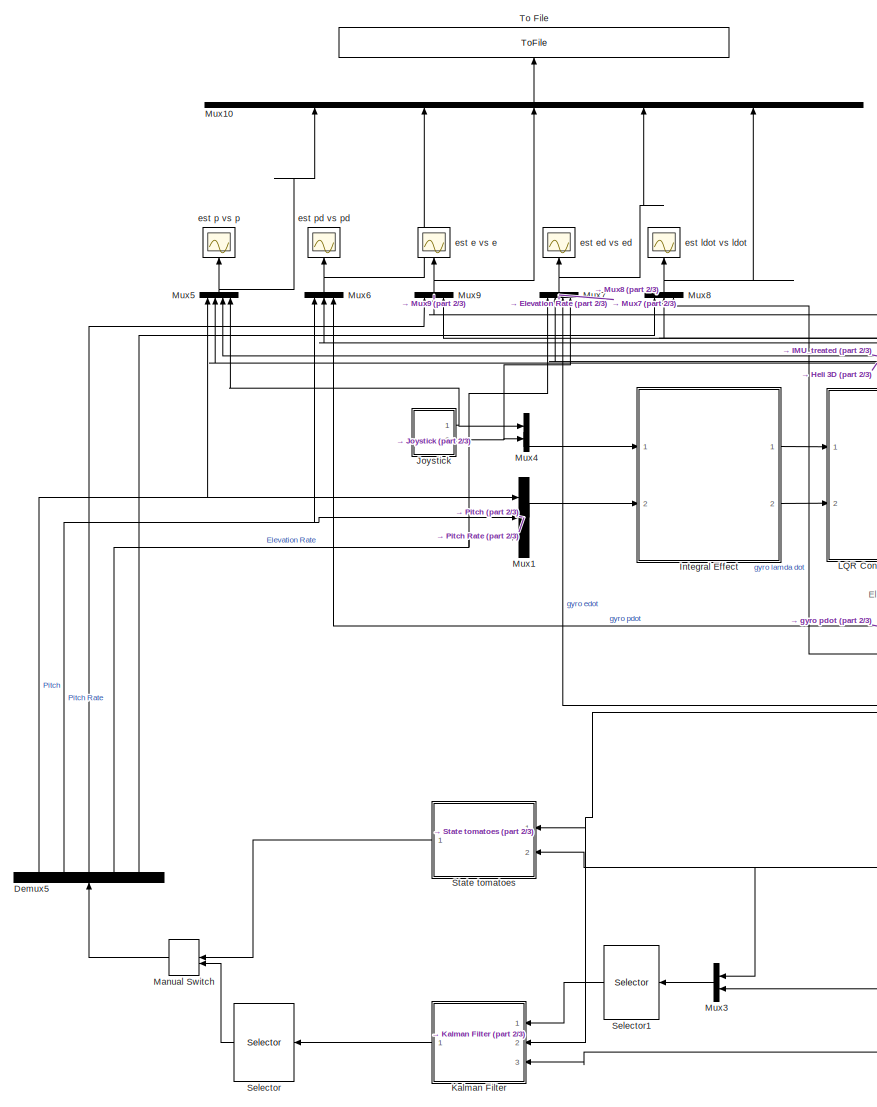
[diagram: root canvas - part 1/3, left side, full height]
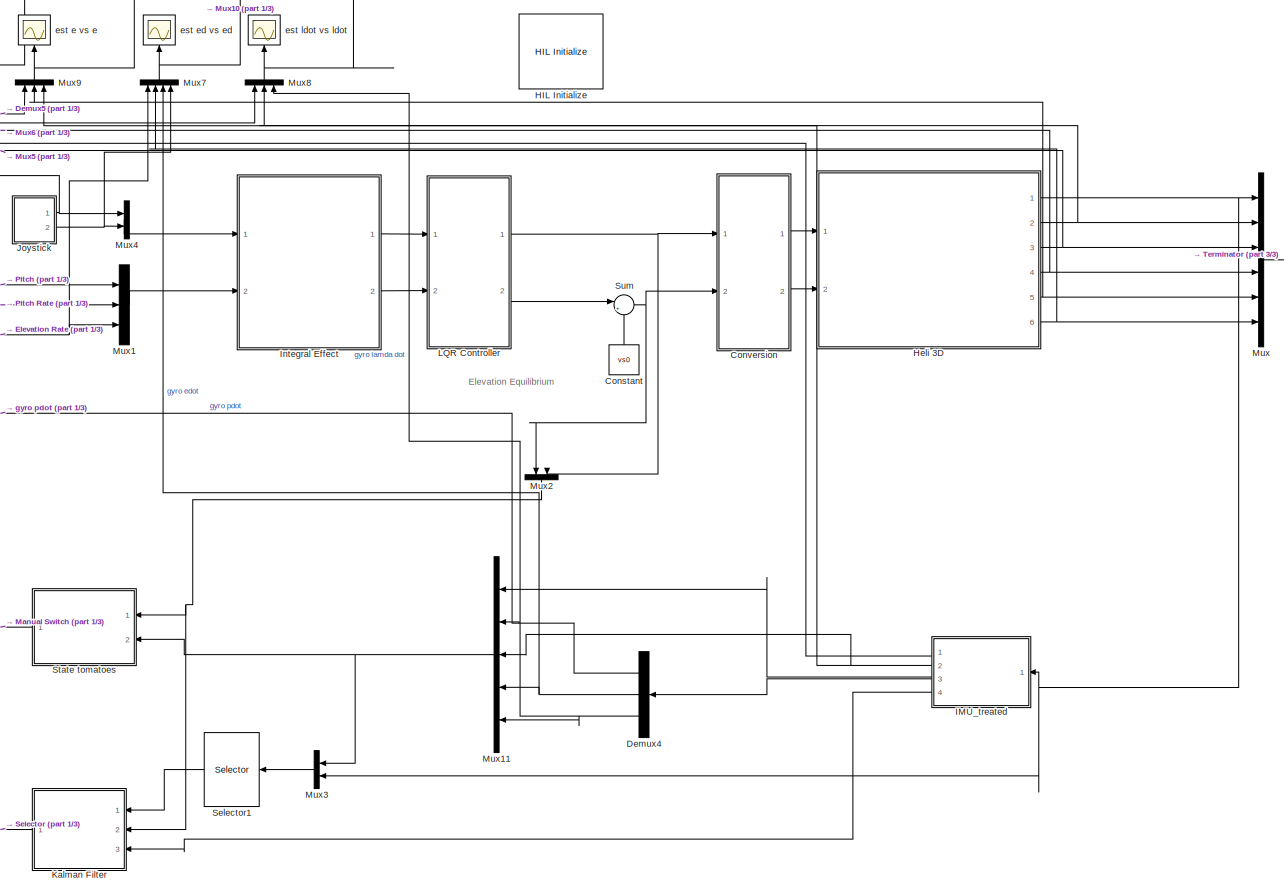
[diagram: root canvas - part 2/3, center side, full height]
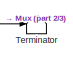
[diagram: root canvas - part 3/3, middle right region]
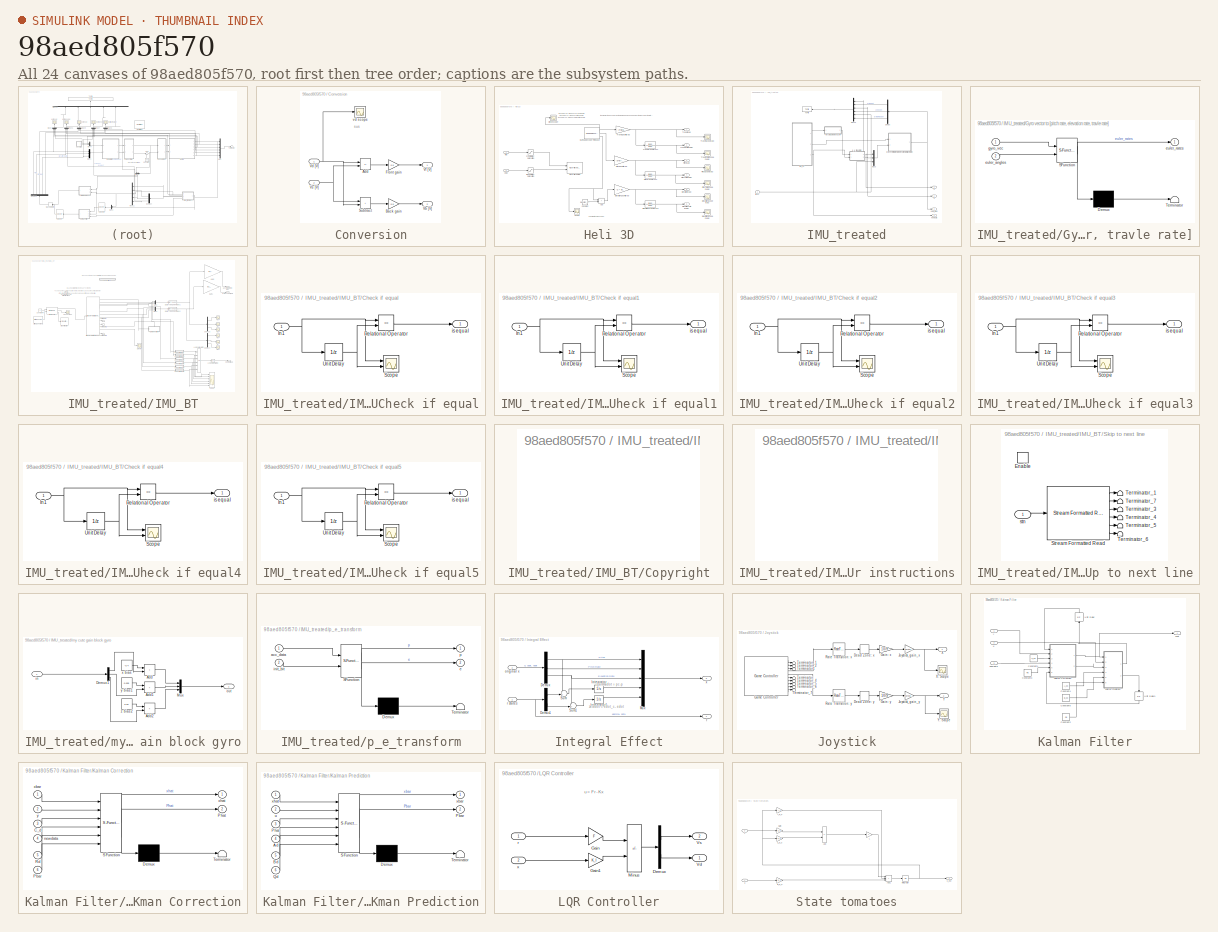
[diagram: thumbnail index - all 24 canvases of the model, root first then tree order]
MODEL slx_98aed805f570
KIND model
CONFIG AbsTol = auto
CONFIG EnableMultiTasking = on
CONFIG FixedStep = 0.002
CONFIG MaxStep = auto
CONFIG MinStep = auto
CONFIG PostLoadFcn = qc_set_target_type(getConfigSet(bdroot, 'QUARC Default Target Configuration'));
CONFIG RelTol = 1e-3
CONFIG SampleTimeConstraint = Unconstrained
CONFIG SolverName = ode1
CONFIG StartTime = 0.0
CONFIG StopTime = inf
BLOCK [Constant] Constant
  NameLocation = right
  Value = vs0
BLOCK [SubSystem] Conversion
  Ports = [2, 2]
  RequestExecContextInheritance = off
BLOCK [Sum] Conversion/Add
  IconShape = rectangular
  Inputs = -+
  Ports = [2, 1]
BLOCK [Gain] Conversion/Back gain
  Gain = 0.5
BLOCK [Gain] Conversion/Front gain
  Gain = 0.5
BLOCK [Sum] Conversion/Subtract
  IconShape = rectangular
  Ports = [2, 1]
BLOCK [Outport] Conversion/Vb [V]
  Port = 2
BLOCK [Inport] Conversion/Vd [V]
BLOCK [Outport] Conversion/Vf [V]
BLOCK [Inport] Conversion/Vs [V]
  Port = 2
BLOCK [Scope] Conversion/vd scope
  Commented = on
  Floating = off
  NumInputPorts = 1
  Ports = [1]
  ScopeSpecificationString = Simulink.scopes.TimeScopeBlockCfg('CurrentConfiguration', extmgr.ConfigurationSet(extmgr.Configuration('Core','General UI',true),extmgr.Configuration('Core','Source UI',true),extmgr.Configuration('Sources','WiredSimulink',true,'DataLoggingVariableName','ScopeData1'),extmgr.Configuration('Visuals','Time Domain',true,'SerializedDisplays',{struct('MinYLimReal','-0.83924','MaxYLimReal','0.42691','YLab...<+1395ch>
BLOCK [Demux] Demux4
  NameLocation = top
  Outputs = 3
  Ports = [1, 3]
BLOCK [Demux] Demux5
  NameLocation = right
  Outputs = 5
  Ports = [1, 5]
BLOCK [Reference] HIL Initialize  REF=quarc_library/Data Acquisition/Generic/Configuration/HIL Initialize
  AttributesFormatString = %<object_name> (%<board_type>-%<board_number>)
  Ports = []
  Priority = -99
  SourceBlock = quarc_library/Data Acquisition/Generic/Configuration/HIL Initialize
  SourceProductName = QUARC Targets
  SourceType = HIL Initialize
  UserDataPersistent = on
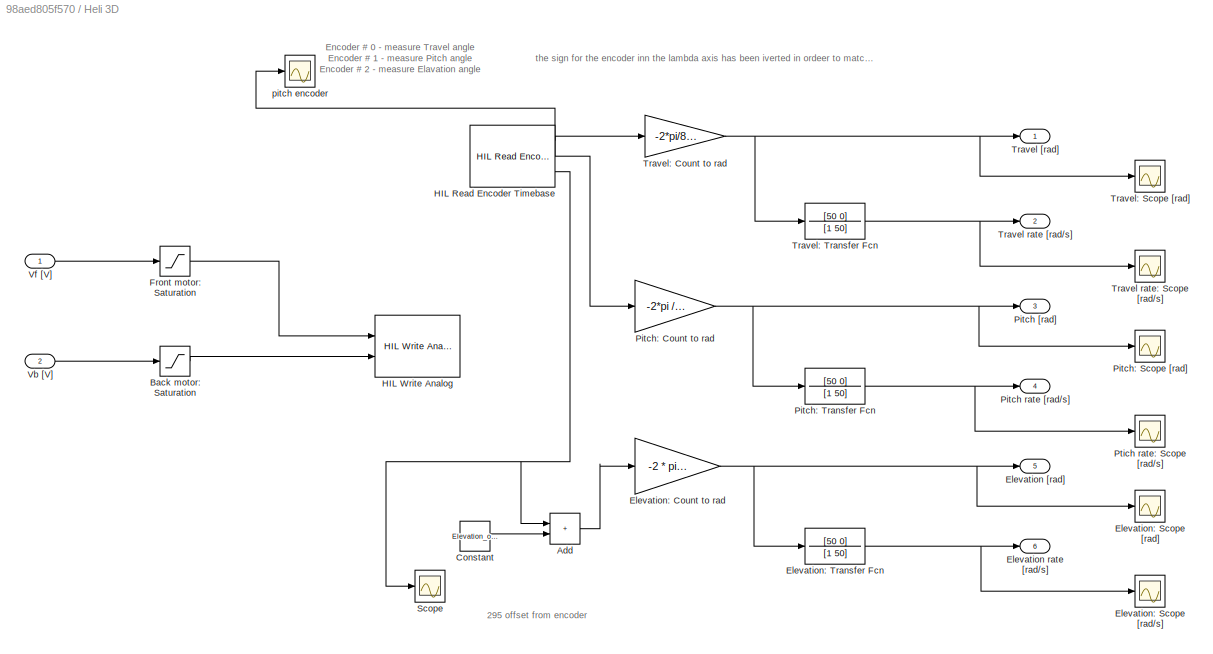
BLOCK [SubSystem] Heli 3D
  Ports = [2, 6]
  RequestExecContextInheritance = off
BLOCK [Sum] Heli 3D/Add
  IconShape = rectangular
  Ports = [2, 1]
BLOCK [Saturate] Heli 3D/Back motor: Saturation
  LowerLimit = -5
  UpperLimit = 5
BLOCK [Constant] Heli 3D/Constant
  Value = Elevation_offset
BLOCK [Outport] Heli 3D/Elevation [rad]
  Port = 5
BLOCK [Outport] Heli 3D/Elevation rate [rad//s]
  Port = 6
BLOCK [Gain] Heli 3D/Elevation: Count to rad
  Gain = -2 * pi /4096
BLOCK [Scope] Heli 3D/Elevation: Scope [rad//s]
  Floating = off
  NumInputPorts = 1
  Ports = [1]
  ScopeSpecificationString = Simulink.scopes.TimeScopeBlockCfg('CurrentConfiguration', extmgr.ConfigurationSet(extmgr.Configuration('Core','General UI',true),extmgr.Configuration('Core','Source UI',true),extmgr.Configuration('Sources','WiredSimulink',true,'DataLoggingVariableName','ScopeData13','DataLoggingSaveFormat','StructureWithTime','DataLoggingLimitDataPoints',true,'DataLoggingDecimation','1','DataLoggingDecimateData',t...<+1717ch>
BLOCK [Scope] Heli 3D/Elevation: Scope [rad]
  Floating = off
  NumInputPorts = 1
  Ports = [1]
  ScopeSpecificationString = Simulink.scopes.TimeScopeBlockCfg('CurrentConfiguration', extmgr.ConfigurationSet(extmgr.Configuration('Core','General UI',true),extmgr.Configuration('Core','Source UI',true),extmgr.Configuration('Sources','WiredSimulink',true,'DataLoggingVariableName','ScopeData12','DataLoggingSaveFormat','StructureWithTime','DataLoggingLimitDataPoints',true,'DataLoggingDecimation','1','DataLoggingDecimateData',t...<+1717ch>
BLOCK [TransferFcn] Heli 3D/Elevation: Transfer Fcn
  Denominator = [1 50]
  Numerator = [50 0]
BLOCK [Saturate] Heli 3D/Front motor: Saturation
  LowerLimit = -5
  UpperLimit = 5
BLOCK [Reference] Heli 3D/HIL Read Encoder Timebase  REF=quarc_library/Data Acquisition/Generic/Timebases/HIL Read Encoder
Timebase
  AttributesFormatString = (%<object_name>)
  Ports = [0, 3]
  SourceBlock = quarc_library/Data Acquisition/Generic/Timebases/HIL Read Encoder\nTimebase
  SourceProductName = QUARC Targets
  SourceType = HIL Read Encoder Timebase
  UserDataPersistent = on
BLOCK [Reference] Heli 3D/HIL Write Analog  REF=quarc_library/Data Acquisition/Generic/Immediate I//O/HIL Write Analog
  AttributesFormatString = (%<object_name>)
  Ports = [2]
  SourceBlock = quarc_library/Data Acquisition/Generic/Immediate I//O/HIL Write Analog
  SourceProductName = QUARC Targets
  SourceType = HIL Write Analog
  UserDataPersistent = on
BLOCK [Outport] Heli 3D/Pitch [rad]
  Port = 3
BLOCK [Outport] Heli 3D/Pitch rate [rad//s]
  Port = 4
BLOCK [Gain] Heli 3D/Pitch: Count to rad
  Gain = -2*pi /4096
  NameLocation = top
BLOCK [Scope] Heli 3D/Pitch: Scope [rad]
  Floating = off
  NumInputPorts = 1
  Ports = [1]
  ScopeSpecificationString = Simulink.scopes.TimeScopeBlockCfg('CurrentConfiguration', extmgr.ConfigurationSet(extmgr.Configuration('Core','General UI',true),extmgr.Configuration('Core','Source UI',true),extmgr.Configuration('Sources','WiredSimulink',true,'DataLoggingVariableName','ScopeData10','DataLoggingSaveFormat','StructureWithTime','DataLoggingLimitDataPoints',true,'DataLoggingDecimation','1','DataLoggingDecimateData',t...<+1716ch>
BLOCK [TransferFcn] Heli 3D/Pitch: Transfer Fcn
  Denominator = [1 50]
  Numerator = [50 0]
BLOCK [Scope] Heli 3D/Ptich rate: Scope [rad//s]
  Floating = off
  NumInputPorts = 1
  Ports = [1]
  ScopeSpecificationString = Simulink.scopes.TimeScopeBlockCfg('CurrentConfiguration', extmgr.ConfigurationSet(extmgr.Configuration('Core','General UI',true),extmgr.Configuration('Core','Source UI',true),extmgr.Configuration('Sources','WiredSimulink',true,'DataLoggingVariableName','ScopeData11','DataLoggingSaveFormat','StructureWithTime','DataLoggingLimitDataPoints',true,'DataLoggingDecimation','1','DataLoggingDecimateData',t...<+1711ch>
BLOCK [Scope] Heli 3D/Scope
  Floating = off
  NumInputPorts = 1
  Ports = [1]
  ScopeSpecificationString = Simulink.scopes.TimeScopeBlockCfg('CurrentConfiguration', extmgr.ConfigurationSet(extmgr.Configuration('Core','General UI',true),extmgr.Configuration('Core','Source UI',true),extmgr.Configuration('Sources','WiredSimulink',true,'DataLoggingVariableName','ScopeData3'),extmgr.Configuration('Visuals','Time Domain',true,'SerializedDisplays',{struct('MinYLimReal','-298.5','MaxYLimReal','-293.5','YLabelR...<+1425ch>
BLOCK [Outport] Heli 3D/Travel [rad]
BLOCK [Outport] Heli 3D/Travel rate [rad//s]
  Port = 2
BLOCK [Scope] Heli 3D/Travel rate: Scope [rad//s]
  Floating = off
  NumInputPorts = 1
  Ports = [1]
  ScopeSpecificationString = Simulink.scopes.TimeScopeBlockCfg('CurrentConfiguration', extmgr.ConfigurationSet(extmgr.Configuration('Core','General UI',true),extmgr.Configuration('Core','Source UI',true),extmgr.Configuration('Sources','WiredSimulink',true,'DataLoggingVariableName','ScopeData9','DataLoggingSaveFormat','StructureWithTime','DataLoggingLimitDataPoints',true,'DataLoggingDecimation','1','DataLoggingDecimateData',tr...<+1672ch>
BLOCK [Gain] Heli 3D/Travel: Count to rad
  Gain = -2*pi/8192
  NameLocation = top
BLOCK [Scope] Heli 3D/Travel: Scope [rad]
  Floating = off
  NumInputPorts = 1
  Ports = [1]
  ScopeSpecificationString = Simulink.scopes.TimeScopeBlockCfg('CurrentConfiguration', extmgr.ConfigurationSet(extmgr.Configuration('Core','General UI',true),extmgr.Configuration('Core','Source UI',true),extmgr.Configuration('Sources','WiredSimulink',true,'DataLoggingVariableName','ScopeData8','DataLoggingSaveFormat','StructureWithTime','DataLoggingLimitDataPoints',true,'DataLoggingDecimation','1','DataLoggingDecimateData',tr...<+1715ch>
BLOCK [TransferFcn] Heli 3D/Travel: Transfer Fcn
  Denominator = [1 50]
  Numerator = [50 0]
BLOCK [Inport] Heli 3D/Vb [V]
  Port = 2
BLOCK [Inport] Heli 3D/Vf [V]
BLOCK [Scope] Heli 3D/pitch encoder
  Floating = off
  NumInputPorts = 1
  Ports = [1]
  ScopeSpecificationString = Simulink.scopes.TimeScopeBlockCfg('CurrentConfiguration', extmgr.ConfigurationSet(extmgr.Configuration('Core','General UI',true),extmgr.Configuration('Core','Source UI',true),extmgr.Configuration('Sources','WiredSimulink',true,'DataLoggingVariableName','ScopeData2'),extmgr.Configuration('Visuals','Time Domain',true),extmgr.Configuration('Tools','Plot Navigation',true),extmgr.Configuration('Tools',...<+40ch>
BLOCK [SubSystem] IMU_treated
  NameLocation = top
  Ports = [1, 4]
  RequestExecContextInheritance = off
BLOCK [Demux] IMU_treated/Demux
  NameLocation = top
  Outputs = 3
  Ports = [1, 3]
BLOCK [SubSystem] IMU_treated/Gyro vector to [pitch rate, elevation rate, travle rate]
  ErrorFcn = Stateflow.Translate.translate
  PermitHierarchicalResolution = ExplicitOnly
  Ports = [2, 1]
  RequestExecContextInheritance = off
  SFBlockType = MATLAB Function
  TreatAsAtomicUnit = on
BLOCK [Demux] IMU_treated/Gyro vector to [pitch rate, elevation rate, travle rate]/ Demux 
  Outputs = 1
  Ports = [1, 1]
BLOCK [S-Function] IMU_treated/Gyro vector to [pitch rate, elevation rate, travle rate]/ SFunction 
  EnableBusSupport = on
  FunctionName = sf_sfun
  PortCounts = [2 2]
  Ports = [2, 2]
  SFcnIsStateOwnerBlock = off
  SFunctionDeploymentMode = off
  Tag = Stateflow S-Function 5
BLOCK [Terminator] IMU_treated/Gyro vector to [pitch rate, elevation rate, travle rate]/ Terminator 
BLOCK [Inport] IMU_treated/Gyro vector to [pitch rate, elevation rate, travle rate]/euler_angles
  Port = 2
BLOCK [Outport] IMU_treated/Gyro vector to [pitch rate, elevation rate, travle rate]/euler_rates
BLOCK [Inport] IMU_treated/Gyro vector to [pitch rate, elevation rate, travle rate]/gyro_vec
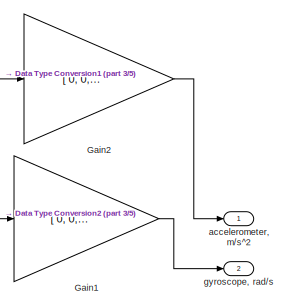
[diagram: IMU_treated/IMU_BT - part 1/5, top right region]
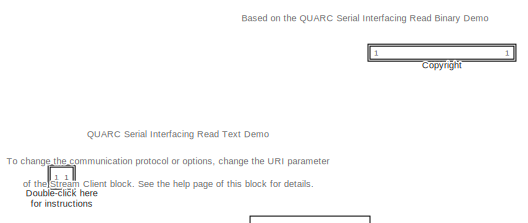
[diagram: IMU_treated/IMU_BT - part 2/5, top left region]
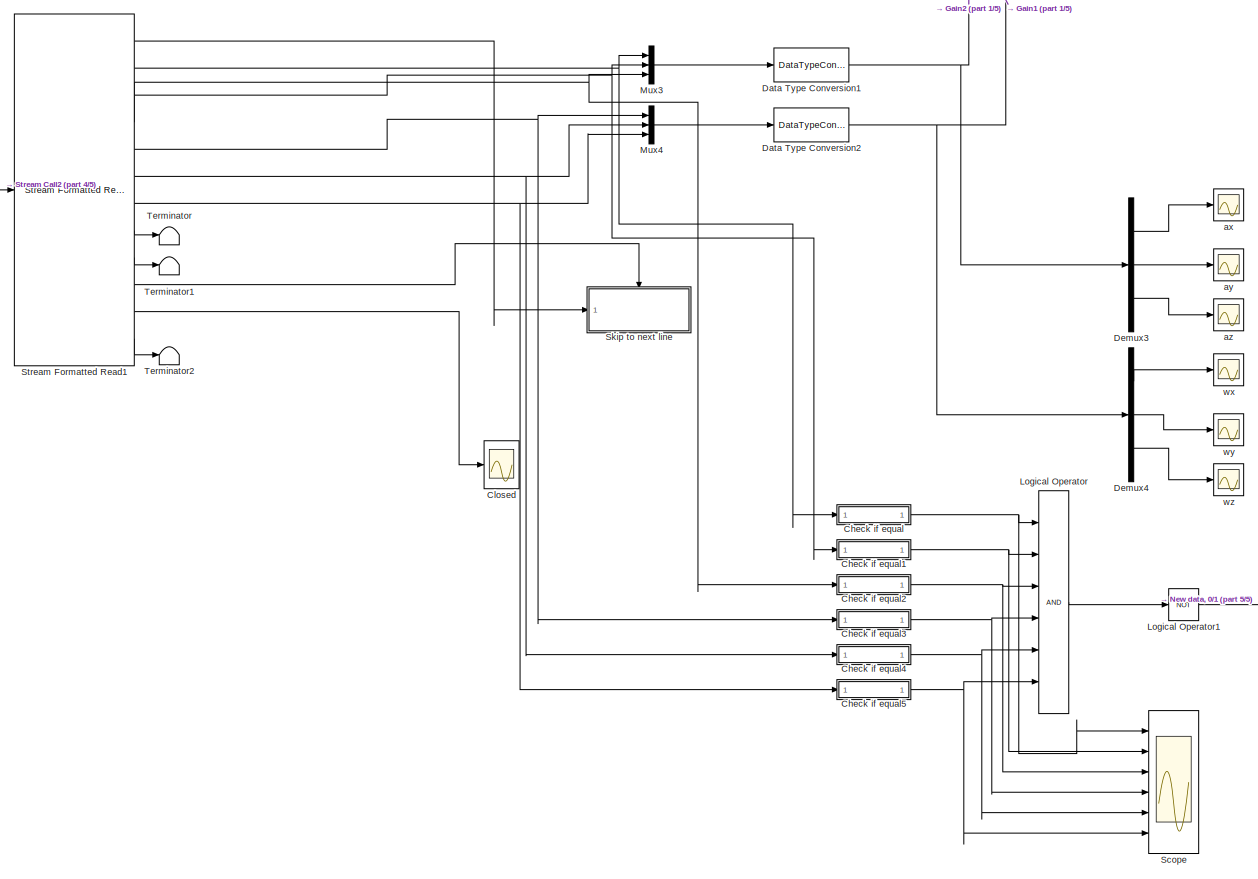
[diagram: IMU_treated/IMU_BT - part 3/5, center side, full height]
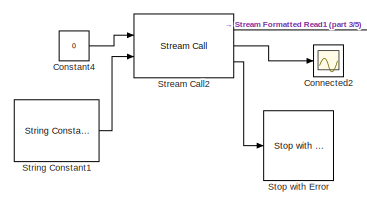
[diagram: IMU_treated/IMU_BT - part 4/5, middle left region]
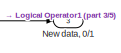
[diagram: IMU_treated/IMU_BT - part 5/5, bottom right region]
BLOCK [SubSystem] IMU_treated/IMU_BT
  Ports = [0, 3]
  RequestExecContextInheritance = off
BLOCK [SubSystem] IMU_treated/IMU_BT/Check if equal
  Ports = [1, 1]
  RequestExecContextInheritance = off
BLOCK [Inport] IMU_treated/IMU_BT/Check if equal/In1
BLOCK [RelationalOperator] IMU_treated/IMU_BT/Check if equal/Relational Operator
  InputSameDT = off
  Operator = ==
  OutDataTypeStr = boolean
  Ports = [2, 1]
BLOCK [Scope] IMU_treated/IMU_BT/Check if equal/Scope
  Floating = off
  NumInputPorts = 2
  Ports = [2]
  ScopeSpecificationString = Simulink.scopes.TimeScopeBlockCfg('CurrentConfiguration', extmgr.ConfigurationSet(extmgr.Configuration('Core','General UI',true),extmgr.Configuration('Core','Source UI',true),extmgr.Configuration('Sources','WiredSimulink',true,'DataLoggingVariableName','ScopeData9'),extmgr.Configuration('Visuals','Time Domain',true,'SerializedDisplays',{struct('MinYLimReal','-1.05125','MaxYLimReal','9.46125','YLab...<+1430ch>
BLOCK [UnitDelay] IMU_treated/IMU_BT/Check if equal/Unit Delay
  HasFrameUpgradeWarning = on
  InitialCondition = NaN
  SampleTime = -1
BLOCK [Outport] IMU_treated/IMU_BT/Check if equal/is equal
BLOCK [SubSystem] IMU_treated/IMU_BT/Check if equal1
  Ports = [1, 1]
  RequestExecContextInheritance = off
BLOCK [Inport] IMU_treated/IMU_BT/Check if equal1/In1
BLOCK [RelationalOperator] IMU_treated/IMU_BT/Check if equal1/Relational Operator
  InputSameDT = off
  Operator = ==
  OutDataTypeStr = boolean
  Ports = [2, 1]
BLOCK [Scope] IMU_treated/IMU_BT/Check if equal1/Scope
  Floating = off
  NumInputPorts = 2
  Ports = [2]
  ScopeSpecificationString = Simulink.scopes.TimeScopeBlockCfg('CurrentConfiguration', extmgr.ConfigurationSet(extmgr.Configuration('Core','General UI',true),extmgr.Configuration('Core','Source UI',true),extmgr.Configuration('Sources','WiredSimulink',true,'DataLoggingVariableName','ScopeData9'),extmgr.Configuration('Visuals','Time Domain',true,'SerializedDisplays',{struct('MinYLimReal','-0.03','MaxYLimReal','0.27','YLabelReal...<+1412ch>
BLOCK [UnitDelay] IMU_treated/IMU_BT/Check if equal1/Unit Delay
  HasFrameUpgradeWarning = on
  InitialCondition = NaN
  SampleTime = -1
BLOCK [Outport] IMU_treated/IMU_BT/Check if equal1/is equal
BLOCK [SubSystem] IMU_treated/IMU_BT/Check if equal2
  Ports = [1, 1]
  RequestExecContextInheritance = off
BLOCK [Inport] IMU_treated/IMU_BT/Check if equal2/In1
BLOCK [RelationalOperator] IMU_treated/IMU_BT/Check if equal2/Relational Operator
  InputSameDT = off
  Operator = ==
  OutDataTypeStr = boolean
  Ports = [2, 1]
BLOCK [Scope] IMU_treated/IMU_BT/Check if equal2/Scope
  Floating = off
  NumInputPorts = 2
  Ports = [2]
  ScopeSpecificationString = Simulink.scopes.TimeScopeBlockCfg('CurrentConfiguration', extmgr.ConfigurationSet(extmgr.Configuration('Core','General UI',true),extmgr.Configuration('Core','Source UI',true),extmgr.Configuration('Sources','WiredSimulink',true,'DataLoggingVariableName','ScopeData9'),extmgr.Configuration('Visuals','Time Domain',true,'SerializedDisplays',{struct('MinYLimReal','-4.7925','MaxYLimReal','0.5325','YLabel...<+1424ch>
BLOCK [UnitDelay] IMU_treated/IMU_BT/Check if equal2/Unit Delay
  HasFrameUpgradeWarning = on
  InitialCondition = NaN
  SampleTime = -1
BLOCK [Outport] IMU_treated/IMU_BT/Check if equal2/is equal
BLOCK [SubSystem] IMU_treated/IMU_BT/Check if equal3
  Ports = [1, 1]
  RequestExecContextInheritance = off
BLOCK [Inport] IMU_treated/IMU_BT/Check if equal3/In1
BLOCK [RelationalOperator] IMU_treated/IMU_BT/Check if equal3/Relational Operator
  InputSameDT = off
  Operator = ==
  OutDataTypeStr = boolean
  Ports = [2, 1]
BLOCK [Scope] IMU_treated/IMU_BT/Check if equal3/Scope
  Floating = off
  NumInputPorts = 2
  Ports = [2]
  ScopeSpecificationString = Simulink.scopes.TimeScopeBlockCfg('CurrentConfiguration', extmgr.ConfigurationSet(extmgr.Configuration('Core','General UI',true),extmgr.Configuration('Core','Source UI',true),extmgr.Configuration('Sources','WiredSimulink',true,'DataLoggingVariableName','ScopeData9'),extmgr.Configuration('Visuals','Time Domain',true,'SerializedDisplays',{struct('MinYLimReal','-0.01125','MaxYLimReal','0.00125','YLab...<+1430ch>
BLOCK [UnitDelay] IMU_treated/IMU_BT/Check if equal3/Unit Delay
  HasFrameUpgradeWarning = on
  InitialCondition = NaN
  SampleTime = -1
BLOCK [Outport] IMU_treated/IMU_BT/Check if equal3/is equal
BLOCK [SubSystem] IMU_treated/IMU_BT/Check if equal4
  Ports = [1, 1]
  RequestExecContextInheritance = off
BLOCK [Inport] IMU_treated/IMU_BT/Check if equal4/In1
BLOCK [RelationalOperator] IMU_treated/IMU_BT/Check if equal4/Relational Operator
  InputSameDT = off
  Operator = ==
  OutDataTypeStr = boolean
  Ports = [2, 1]
BLOCK [Scope] IMU_treated/IMU_BT/Check if equal4/Scope
  Floating = off
  NumInputPorts = 2
  Ports = [2]
  ScopeSpecificationString = Simulink.scopes.TimeScopeBlockCfg('CurrentConfiguration', extmgr.ConfigurationSet(extmgr.Configuration('Core','General UI',true),extmgr.Configuration('Core','Source UI',true),extmgr.Configuration('Sources','WiredSimulink',true,'DataLoggingVariableName','ScopeData9'),extmgr.Configuration('Visuals','Time Domain',true,'SerializedDisplays',{struct('MinYLimReal','-0.045','MaxYLimReal','0.005','YLabelRe...<+1418ch>
BLOCK [UnitDelay] IMU_treated/IMU_BT/Check if equal4/Unit Delay
  HasFrameUpgradeWarning = on
  InitialCondition = NaN
  SampleTime = -1
BLOCK [Outport] IMU_treated/IMU_BT/Check if equal4/is equal
BLOCK [SubSystem] IMU_treated/IMU_BT/Check if equal5
  Ports = [1, 1]
  RequestExecContextInheritance = off
BLOCK [Inport] IMU_treated/IMU_BT/Check if equal5/In1
BLOCK [RelationalOperator] IMU_treated/IMU_BT/Check if equal5/Relational Operator
  InputSameDT = off
  Operator = ==
  OutDataTypeStr = boolean
  Ports = [2, 1]
BLOCK [Scope] IMU_treated/IMU_BT/Check if equal5/Scope
  Floating = off
  NumInputPorts = 2
  Ports = [2]
  ScopeSpecificationString = Simulink.scopes.TimeScopeBlockCfg('CurrentConfiguration', extmgr.ConfigurationSet(extmgr.Configuration('Core','General UI',true),extmgr.Configuration('Core','Source UI',true),extmgr.Configuration('Sources','WiredSimulink',true,'DataLoggingVariableName','ScopeData9'),extmgr.Configuration('Visuals','Time Domain',true,'SerializedDisplays',{struct('MinYLimReal','-0.00125','MaxYLimReal','0.01125','YLab...<+1430ch>
BLOCK [UnitDelay] IMU_treated/IMU_BT/Check if equal5/Unit Delay
  HasFrameUpgradeWarning = on
  InitialCondition = NaN
  SampleTime = -1
BLOCK [Outport] IMU_treated/IMU_BT/Check if equal5/is equal
BLOCK [Scope] IMU_treated/IMU_BT/Closed
  Floating = off
  NumInputPorts = 1
  Ports = [1]
  ScopeSpecificationString = Simulink.scopes.TimeScopeBlockCfg('CurrentConfiguration', extmgr.ConfigurationSet(extmgr.Configuration('Core','General UI',true),extmgr.Configuration('Core','Source UI',true),extmgr.Configuration('Sources','WiredSimulink',true,'DataLoggingVariableName','ScopeData1','DataLoggingLimitDataPoints',true,'DataLoggingSaveFormat','Array','DataLoggingDecimation','1','DataLoggingDecimateData',true),extmgr.C...<+165ch>
BLOCK [Scope] IMU_treated/IMU_BT/Connected2
  Floating = off
  NumInputPorts = 1
  Ports = [1]
  ScopeSpecificationString = Simulink.scopes.TimeScopeBlockCfg('CurrentConfiguration', extmgr.ConfigurationSet(extmgr.Configuration('Core','General UI',true),extmgr.Configuration('Core','Source UI',true),extmgr.Configuration('Sources','WiredSimulink',true,'DataLoggingVariableName','ScopeData2','DataLoggingLimitDataPoints',true,'DataLoggingSaveFormat','Array','DataLoggingDecimation','1','DataLoggingDecimateData',true),extmgr.C...<+165ch>
BLOCK [Constant] IMU_treated/IMU_BT/Constant4
  Value = 0
BLOCK [SubSystem] IMU_treated/IMU_BT/<copyright redacted>
  OpenFcn = web('http://www.quanser.com/');
  Permissions = NoReadOrWrite
  PermitHierarchicalResolution = None
  Ports = []
  RequestExecContextInheritance = off
BLOCK [DataTypeConversion] IMU_treated/IMU_BT/Data Type Conversion1
  OutDataTypeStr = double
  RndMeth = Floor
  SaturateOnIntegerOverflow = off
BLOCK [DataTypeConversion] IMU_treated/IMU_BT/Data Type Conversion2
  OutDataTypeStr = double
  RndMeth = Floor
  SaturateOnIntegerOverflow = off
BLOCK [Demux] IMU_treated/IMU_BT/Demux3
  Outputs = 3
  Ports = [1, 3]
BLOCK [Demux] IMU_treated/IMU_BT/Demux4
  Outputs = 3
  Ports = [1, 3]
BLOCK [SubSystem] IMU_treated/IMU_BT/Double-click here for instructions
  OpenFcn = qc_show_demo('quarc_serial_interfacing_text_demo');
  Permissions = NoReadOrWrite
  PermitHierarchicalResolution = None
  Ports = []
  RequestExecContextInheritance = off
BLOCK [Gain] IMU_treated/IMU_BT/Gain1
  Gain = [ 0, 0, 1; 0, 1, 0; -1, 0, 0]
  Multiplication = Matrix(K*u) (u vector)
BLOCK [Gain] IMU_treated/IMU_BT/Gain2
  Gain = [ 0, 0, 1; 0, 1, 0; -1, 0, 0]
  Multiplication = Matrix(K*u) (u vector)
BLOCK [Logic] IMU_treated/IMU_BT/Logical Operator
  AllPortsSameDT = off
  Inputs = 6
  OutDataTypeStr = boolean
  Ports = [6, 1]
BLOCK [Logic] IMU_treated/IMU_BT/Logical Operator1
  AllPortsSameDT = off
  Operator = NOT
  OutDataTypeStr = boolean
  Ports = [1, 1]
BLOCK [Mux] IMU_treated/IMU_BT/Mux3
  DisplayOption = bar
  Inputs = 3
  Ports = [3, 1]
BLOCK [Mux] IMU_treated/IMU_BT/Mux4
  DisplayOption = bar
  Inputs = 3
  Ports = [3, 1]
BLOCK [Outport] IMU_treated/IMU_BT/New data, 0//1
  Port = 3
BLOCK [Scope] IMU_treated/IMU_BT/Scope
  Floating = off
  NumInputPorts = 6
  Ports = [6]
  ScopeSpecificationString = Simulink.scopes.TimeScopeBlockCfg('CurrentConfiguration', extmgr.ConfigurationSet(extmgr.Configuration('Core','General UI',true),extmgr.Configuration('Core','Source UI',true),extmgr.Configuration('Sources','WiredSimulink',true,'DataLoggingVariableName','ScopeData4','DataLoggingLimitDataPoints',true,'DataLoggingSaveFormat','Array','DataLoggingDecimation','1','DataLoggingDecimateData',true),extmgr.C...<+1576ch>
BLOCK [SubSystem] IMU_treated/IMU_BT/Skip to next line
  Ports = [1, 0, 1]
  RequestExecContextInheritance = off
  TreatAsAtomicUnit = on
BLOCK [EnablePort] IMU_treated/IMU_BT/Skip to next line/Enable
  Ports = []
BLOCK [Reference] IMU_treated/IMU_BT/Skip to next line/Stream Formatted Read  REF=quarc_library/Communications/Intermediate/Stream Formatted
Read
  Ports = [1, 6]
  SourceBlock = quarc_library/Communications/Intermediate/Stream Formatted\nRead
  SourceProductName = QUARC Targets
  SourceType = Stream Formatted Read
BLOCK [Terminator] IMU_treated/IMU_BT/Skip to next line/Terminator_1
BLOCK [Terminator] IMU_treated/IMU_BT/Skip to next line/Terminator_3
BLOCK [Terminator] IMU_treated/IMU_BT/Skip to next line/Terminator_4
BLOCK [Terminator] IMU_treated/IMU_BT/Skip to next line/Terminator_5
BLOCK [Terminator] IMU_treated/IMU_BT/Skip to next line/Terminator_6
BLOCK [Terminator] IMU_treated/IMU_BT/Skip to next line/Terminator_7
BLOCK [Inport] IMU_treated/IMU_BT/Skip to next line/stn
BLOCK [Reference] IMU_treated/IMU_BT/Stop with Error  REF=quarc_library/Sinks/Error Handling/Stop with Error
  Ports = [1]
  SourceBlock = quarc_library/Sinks/Error Handling/Stop with Error
  SourceProductName = QUARC Targets
  SourceType = Stop with Error
BLOCK [Reference] IMU_treated/IMU_BT/Stream Call2  REF=quarc_library/Communications/Intermediate/Stream Call
  Ports = [2, 3]
  SourceBlock = quarc_library/Communications/Intermediate/Stream Call
  SourceProductName = QUARC Targets
  SourceType = Stream Call
BLOCK [Reference] IMU_treated/IMU_BT/Stream Formatted Read1  REF=quarc_library/Communications/Intermediate/Stream Formatted
Read
  Ports = [1, 12]
  SourceBlock = quarc_library/Communications/Intermediate/Stream Formatted\nRead
  SourceProductName = QUARC Targets
  SourceType = Stream Formatted Read
BLOCK [Reference] IMU_treated/IMU_BT/String Constant1  REF=quarc_library/Strings/String Constant
  AttributesFormatString = "serial://IMU:3?baud=115200,word=8,parity=none,stop=1"
  Ports = [0, 1]
  SourceBlock = quarc_library/Strings/String Constant
  SourceProductName = QUARC Targets
  SourceType = String Constant
BLOCK [Terminator] IMU_treated/IMU_BT/Terminator
BLOCK [Terminator] IMU_treated/IMU_BT/Terminator1
BLOCK [Terminator] IMU_treated/IMU_BT/Terminator2
BLOCK [Outport] IMU_treated/IMU_BT/accelerometer, m//s^2
BLOCK [Scope] IMU_treated/IMU_BT/ax
  Floating = off
  NumInputPorts = 1
  Ports = [1]
  ScopeSpecificationString = Simulink.scopes.TimeScopeBlockCfg('CurrentConfiguration', extmgr.ConfigurationSet(extmgr.Configuration('Core','General UI',true),extmgr.Configuration('Core','Source UI',true),extmgr.Configuration('Sources','WiredSimulink',true,'DataLoggingVariableName','ScopeData5','DataLoggingLimitDataPoints',true,'DataLoggingSaveFormat','Array','DataLoggingDecimation','1','DataLoggingDecimateData',true),extmgr.C...<+1468ch>
BLOCK [Scope] IMU_treated/IMU_BT/ay
  Floating = off
  NumInputPorts = 1
  Ports = [1]
  ScopeSpecificationString = Simulink.scopes.TimeScopeBlockCfg('CurrentConfiguration', extmgr.ConfigurationSet(extmgr.Configuration('Core','General UI',true),extmgr.Configuration('Core','Source UI',true),extmgr.Configuration('Sources','WiredSimulink',true,'DataLoggingVariableName','ScopeData7','DataLoggingLimitDataPoints',true,'DataLoggingSaveFormat','Array','DataLoggingDecimation','1','DataLoggingDecimateData',true),extmgr.C...<+1462ch>
BLOCK [Scope] IMU_treated/IMU_BT/az
  Floating = off
  NumInputPorts = 1
  Ports = [1]
  ScopeSpecificationString = Simulink.scopes.TimeScopeBlockCfg('CurrentConfiguration', extmgr.ConfigurationSet(extmgr.Configuration('Core','General UI',true),extmgr.Configuration('Core','Source UI',true),extmgr.Configuration('Sources','WiredSimulink',true,'DataLoggingVariableName','ScopeData9','DataLoggingLimitDataPoints',true,'DataLoggingSaveFormat','Array','DataLoggingDecimation','1','DataLoggingDecimateData',true),extmgr.C...<+1494ch>
BLOCK [Outport] IMU_treated/IMU_BT/gyroscope, rad//s
  Port = 2
BLOCK [Scope] IMU_treated/IMU_BT/wx
  Floating = off
  NumInputPorts = 1
  Ports = [1]
  ScopeSpecificationString = Simulink.scopes.TimeScopeBlockCfg('CurrentConfiguration', extmgr.ConfigurationSet(extmgr.Configuration('Core','General UI',true),extmgr.Configuration('Core','Source UI',true),extmgr.Configuration('Sources','WiredSimulink',true,'DataLoggingVariableName','ScopeData13','DataLoggingLimitDataPoints',true,'DataLoggingSaveFormat','Array','DataLoggingDecimation','1','DataLoggingDecimateData',true),extmgr....<+1520ch>
BLOCK [Scope] IMU_treated/IMU_BT/wy
  Floating = off
  NumInputPorts = 1
  Ports = [1]
  ScopeSpecificationString = Simulink.scopes.TimeScopeBlockCfg('CurrentConfiguration', extmgr.ConfigurationSet(extmgr.Configuration('Core','General UI',true),extmgr.Configuration('Core','Source UI',true),extmgr.Configuration('Sources','WiredSimulink',true,'DataLoggingVariableName','ScopeData15','DataLoggingLimitDataPoints',true,'DataLoggingSaveFormat','Array','DataLoggingDecimation','1','DataLoggingDecimateData',true),extmgr....<+1493ch>
BLOCK [Scope] IMU_treated/IMU_BT/wz
  Floating = off
  NumInputPorts = 1
  Ports = [1]
  ScopeSpecificationString = Simulink.scopes.TimeScopeBlockCfg('CurrentConfiguration', extmgr.ConfigurationSet(extmgr.Configuration('Core','General UI',true),extmgr.Configuration('Core','Source UI',true),extmgr.Configuration('Sources','WiredSimulink',true,'DataLoggingVariableName','ScopeData17','DataLoggingLimitDataPoints',true,'DataLoggingSaveFormat','Array','DataLoggingDecimation','1','DataLoggingDecimateData',true),extmgr....<+1488ch>
BLOCK [Mux] IMU_treated/Mux10
  DisplayOption = bar
  Inputs = 6
  NameLocation = top
  Ports = [6, 1]
BLOCK [Mux] IMU_treated/Mux3
  DisplayOption = bar
  Inputs = 3
  Ports = [3, 1]
BLOCK [ToFile] IMU_treated/To File
  Commented = on
  Filename = equil_ts.mat
  NameLocation = top
  Ports = [1]
BLOCK [Outport] IMU_treated/e
  Port = 2
BLOCK [Outport] IMU_treated/euler_rates
  Port = 3
BLOCK [SubSystem] IMU_treated/my cute gain block gyro
  Ports = [1, 1]
  RequestExecContextInheritance = off
BLOCK [Sum] IMU_treated/my cute gain block gyro/Add
  IconShape = rectangular
  Ports = [2, 1]
BLOCK [Sum] IMU_treated/my cute gain block gyro/Add1
  IconShape = rectangular
  Ports = [2, 1]
BLOCK [Sum] IMU_treated/my cute gain block gyro/Add2
  IconShape = rectangular
  Ports = [2, 1]
BLOCK [Demux] IMU_treated/my cute gain block gyro/Demux1
  Outputs = 3
  Ports = [1, 3]
BLOCK [Mux] IMU_treated/my cute gain block gyro/Mux
  DisplayOption = bar
  Inputs = 3
  Ports = [3, 1]
BLOCK [Inport] IMU_treated/my cute gain block gyro/in
BLOCK [Outport] IMU_treated/my cute gain block gyro/out
BLOCK [Constant] IMU_treated/my cute gain block gyro/x bias
  Value = -0.4
BLOCK [Constant] IMU_treated/my cute gain block gyro/y bias1
  Value = 0.005
BLOCK [Constant] IMU_treated/my cute gain block gyro/z bias2
  Value = 0.02
BLOCK [Outport] IMU_treated/newdata
  Port = 4
BLOCK [Outport] IMU_treated/p
BLOCK [SubSystem] IMU_treated/p_e_transform
  ErrorFcn = Stateflow.Translate.translate
  PermitHierarchicalResolution = ExplicitOnly
  Ports = [2, 2]
  RequestExecContextInheritance = off
  SFBlockType = MATLAB Function
  TreatAsAtomicUnit = on
BLOCK [Demux] IMU_treated/p_e_transform/ Demux 
  Outputs = 1
  Ports = [1, 1]
BLOCK [S-Function] IMU_treated/p_e_transform/ SFunction 
  EnableBusSupport = on
  FunctionName = sf_sfun
  PortCounts = [2 3]
  Ports = [2, 3]
  SFcnIsStateOwnerBlock = off
  SFunctionDeploymentMode = off
  Tag = Stateflow S-Function 6
BLOCK [Terminator] IMU_treated/p_e_transform/ Terminator 
BLOCK [Inport] IMU_treated/p_e_transform/acc_data
BLOCK [Outport] IMU_treated/p_e_transform/e
  Port = 2
BLOCK [Inport] IMU_treated/p_e_transform/init_bit
  Port = 2
BLOCK [Outport] IMU_treated/p_e_transform/p
BLOCK [Inport] IMU_treated/travel
BLOCK [SubSystem] Integral Effect
  Ports = [2, 2]
  RequestExecContextInheritance = off
BLOCK [Demux] Integral Effect/Demux
  Outputs = 3
  Ports = [1, 3]
BLOCK [Demux] Integral Effect/Demux1
  Outputs = 2
  Ports = [1, 2]
BLOCK [Integrator] Integral Effect/Integrator
  Ports = [1, 1]
BLOCK [Integrator] Integral Effect/Integrator1
  Ports = [1, 1]
BLOCK [Mux] Integral Effect/Mux
  DisplayOption = bar
  Inputs = 5
  Ports = [5, 1]
BLOCK [Sum] Integral Effect/Sum
  Inputs = -+|
  Ports = [2, 1]
BLOCK [Sum] Integral Effect/Sum1
  Inputs = -+|
  Ports = [2, 1]
BLOCK [Inport] Integral Effect/original  x
  Port = 2
BLOCK [Outport] Integral Effect/r
BLOCK [Inport] Integral Effect/r states
BLOCK [Outport] Integral Effect/x
  Port = 2
BLOCK [SubSystem] Joystick
  Ports = [0, 2]
  RequestExecContextInheritance = off
BLOCK [DeadZone] Joystick/Dead Zone: x
  LowerValue = -0.1
  UpperValue = 0.1
BLOCK [DeadZone] Joystick/Dead Zone: y
  LowerValue = -0.1
  UpperValue = 0.1
BLOCK [Gain] Joystick/Gain: x
  Gain = 10/9
BLOCK [Gain] Joystick/Gain: y
  Gain = 10/9
BLOCK [Reference] Joystick/Game Controller  REF=quarc_library/Devices/Peripherals/Target/Game Controller
  Ports = [0, 10]
  SourceBlock = quarc_library/Devices/Peripherals/Target/Game Controller
  SourceProductName = QUARC Targets
  SourceType = Game Controller
BLOCK [Gain] Joystick/Joystick_gain_x
  Gain = Joystick_gain_x
BLOCK [Gain] Joystick/Joystick_gain_y
  Gain = Joystick_gain_y
BLOCK [RateTransition] Joystick/Rate Transition: x
BLOCK [RateTransition] Joystick/Rate Transition: y
BLOCK [Terminator] Joystick/Terminator
BLOCK [Terminator] Joystick/Terminator1
BLOCK [Terminator] Joystick/Terminator_1
BLOCK [Terminator] Joystick/Terminator_2
BLOCK [Terminator] Joystick/Terminator_4
BLOCK [Terminator] Joystick/Terminator_5
BLOCK [Terminator] Joystick/Terminator_6
BLOCK [Terminator] Joystick/Terminator_7
BLOCK [Outport] Joystick/X
BLOCK [Scope] Joystick/X: Scope
  Floating = off
  NumInputPorts = 1
  Ports = [1]
  ScopeSpecificationString = Simulink.scopes.TimeScopeBlockCfg('CurrentConfiguration', extmgr.ConfigurationSet(extmgr.Configuration('Core','General UI',true),extmgr.Configuration('Core','Source UI',true),extmgr.Configuration('Sources','WiredSimulink',true,'DataLoggingVariableName','ScopeData7','DataLoggingSaveFormat','StructureWithTime','DataLoggingLimitDataPoints',true,'DataLoggingDecimation','1','DataLoggingDecimateData',tr...<+1701ch>
BLOCK [Outport] Joystick/Y
  Port = 2
BLOCK [Scope] Joystick/Y: Scope
  Floating = off
  NumInputPorts = 1
  Ports = [1]
  ScopeSpecificationString = Simulink.scopes.TimeScopeBlockCfg('CurrentConfiguration', extmgr.ConfigurationSet(extmgr.Configuration('Core','General UI',true),extmgr.Configuration('Core','Source UI',true),extmgr.Configuration('Sources','WiredSimulink',true,'DataLoggingVariableName','ScopeData5','DataLoggingSaveFormat','StructureWithTime','DataLoggingLimitDataPoints',true,'DataLoggingDecimation','1','DataLoggingDecimateData',tr...<+1711ch>
BLOCK [SubSystem] Kalman Filter
  NameLocation = top
  Ports = [3, 1]
  RequestExecContextInheritance = off
BLOCK [Constant] Kalman Filter/Constant1
  Value = C_kd
BLOCK [Constant] Kalman Filter/Constant2
  Value = Qd
BLOCK [Constant] Kalman Filter/Constant3
  Value = Rd
BLOCK [Constant] Kalman Filter/Constant4
  Value = A_kd
BLOCK [Constant] Kalman Filter/Constant5
  Value = B_kd
BLOCK [SubSystem] Kalman Filter/Kalman Correction
  ErrorFcn = Stateflow.Translate.translate
  PermitHierarchicalResolution = ExplicitOnly
  Ports = [6, 2]
  RequestExecContextInheritance = off
  SFBlockType = MATLAB Function
  TreatAsAtomicUnit = on
BLOCK [Demux] Kalman Filter/Kalman Correction/ Demux 
  Outputs = 1
  Ports = [1, 1]
BLOCK [S-Function] Kalman Filter/Kalman Correction/ SFunction 
  EnableBusSupport = on
  FunctionName = sf_sfun
  PortCounts = [6 3]
  Ports = [6, 3]
  SFcnIsStateOwnerBlock = off
  SFunctionDeploymentMode = off
  Tag = Stateflow S-Function 4
BLOCK [Terminator] Kalman Filter/Kalman Correction/ Terminator 
BLOCK [Inport] Kalman Filter/Kalman Correction/C_d
  Port = 3
BLOCK [Inport] Kalman Filter/Kalman Correction/Pbar
  Port = 6
BLOCK [Outport] Kalman Filter/Kalman Correction/Phat
  Port = 2
BLOCK [Inport] Kalman Filter/Kalman Correction/Rd
  Port = 5
BLOCK [Inport] Kalman Filter/Kalman Correction/newdata
  Port = 4
BLOCK [Inport] Kalman Filter/Kalman Correction/xbar
BLOCK [Outport] Kalman Filter/Kalman Correction/xhat
BLOCK [Inport] Kalman Filter/Kalman Correction/y
  Port = 2
BLOCK [SubSystem] Kalman Filter/Kalman Prediction
  ErrorFcn = Stateflow.Translate.translate
  PermitHierarchicalResolution = ExplicitOnly
  Ports = [6, 2]
  RequestExecContextInheritance = off
  SFBlockType = MATLAB Function
  TreatAsAtomicUnit = on
BLOCK [Demux] Kalman Filter/Kalman Prediction/ Demux 
  Outputs = 1
  Ports = [1, 1]
BLOCK [S-Function] Kalman Filter/Kalman Prediction/ SFunction 
  EnableBusSupport = on
  FunctionName = sf_sfun
  PortCounts = [6 3]
  Ports = [6, 3]
  SFcnIsStateOwnerBlock = off
  SFunctionDeploymentMode = off
  Tag = Stateflow S-Function 3
BLOCK [Terminator] Kalman Filter/Kalman Prediction/ Terminator 
BLOCK [Inport] Kalman Filter/Kalman Prediction/Ad
  Port = 4
BLOCK [Inport] Kalman Filter/Kalman Prediction/Bd
  Port = 5
BLOCK [Outport] Kalman Filter/Kalman Prediction/Pbar
  Port = 2
BLOCK [Inport] Kalman Filter/Kalman Prediction/Phat
  Port = 3
BLOCK [Inport] Kalman Filter/Kalman Prediction/Qd
  Port = 6
BLOCK [Inport] Kalman Filter/Kalman Prediction/u
  Port = 2
BLOCK [Outport] Kalman Filter/Kalman Prediction/xbar
BLOCK [Inport] Kalman Filter/Kalman Prediction/xhat
BLOCK [UnitDelay] Kalman Filter/Unit Delay
  HasFrameUpgradeWarning = on
  InitialCondition = zeros(6,1)
  NameLocation = right
  SampleTime = -1
BLOCK [UnitDelay] Kalman Filter/Unit Delay1
  HasFrameUpgradeWarning = on
  InitialCondition = zeros(6)
  NameLocation = left
  SampleTime = -1
BLOCK [Inport] Kalman Filter/newdata
  Port = 3
BLOCK [Inport] Kalman Filter/u
  Port = 2
BLOCK [Outport] Kalman Filter/xhat
BLOCK [Inport] Kalman Filter/y
BLOCK [SubSystem] LQR Controller
  Ports = [2, 2]
  RequestExecContextInheritance = off
BLOCK [Demux] LQR Controller/Demux
  Outputs = 2
  Ports = [1, 2]
BLOCK [Gain] LQR Controller/Gain
  Gain = F
  Multiplication = Matrix(K*u)
BLOCK [Gain] LQR Controller/Gain1
  Gain = K_I
  Multiplication = Matrix(K*u)
BLOCK [Sum] LQR Controller/Minus
  IconShape = rectangular
  Inputs = +-
  Ports = [2, 1]
BLOCK [Outport] LQR Controller/Vd
BLOCK [Outport] LQR Controller/Vs
  Port = 2
BLOCK [Inport] LQR Controller/r
BLOCK [Inport] LQR Controller/x
  Port = 2
BLOCK [ManualSwitch] Manual Switch
  CurrentSetting = 0
  NameLocation = top
BLOCK [Mux] Mux
  DisplayOption = bar
  Inputs = 6
  Ports = [6, 1]
BLOCK [Mux] Mux1
  DisplayOption = bar
  Inputs = 3
  Ports = [3, 1]
BLOCK [Mux] Mux10
  DisplayOption = bar
  Inputs = 5
  NameLocation = right
  Ports = [5, 1]
BLOCK [Mux] Mux11
  DisplayOption = bar
  Inputs = 5
  NameLocation = top
  Ports = [5, 1]
BLOCK [Mux] Mux2
  DisplayOption = bar
  Inputs = 2
  NameLocation = left
  Ports = [2, 1]
BLOCK [Mux] Mux3
  DisplayOption = bar
  Inputs = 2
  NameLocation = top
  Ports = [2, 1]
BLOCK [Mux] Mux4
  DisplayOption = bar
  Inputs = 2
  Ports = [2, 1]
BLOCK [Mux] Mux5
  DisplayOption = bar
  NameLocation = right
  Ports = [4, 1]
BLOCK [Mux] Mux6
  DisplayOption = bar
  Inputs = 3
  NameLocation = right
  Ports = [3, 1]
BLOCK [Mux] Mux7
  DisplayOption = bar
  NameLocation = right
  Ports = [4, 1]
BLOCK [Mux] Mux8
  DisplayOption = bar
  Inputs = 3
  NameLocation = right
  Ports = [3, 1]
BLOCK [Mux] Mux9
  DisplayOption = bar
  Inputs = 3
  NameLocation = top
  Ports = [3, 1]
BLOCK [Selector] Selector
  IndexOptions = Index vector (dialog)
  Indices = [1 2 3 4 6]
  InputPortWidth = 6
  NameLocation = top
  OutputSizes = 1
  Ports = [1, 1]
BLOCK [Selector] Selector1
  IndexOptions = Index vector (dialog)
  Indices = [1 2 3 4 6 5]
  InputPortWidth = 6
  NameLocation = top
  OutputSizes = 1
  Ports = [1, 1]
BLOCK [SubSystem] State tomatoes
  NameLocation = top
  Ports = [2, 1]
  RequestExecContextInheritance = off
BLOCK [Gain] State tomatoes/A_e_x
  Gain = A_e
  Multiplication = Matrix(K*u) (u vector)
BLOCK [Sum] State tomatoes/Add
  IconShape = rectangular
  Inputs = +-
  Ports = [2, 1]
BLOCK [Sum] State tomatoes/Add1
  IconShape = rectangular
  Inputs = +++
  Ports = [3, 1]
BLOCK [Gain] State tomatoes/B_e_u
  Gain = B_e
  Multiplication = Matrix(K*u) (u vector)
BLOCK [Gain] State tomatoes/C_e_x
  Gain = C_e
  Multiplication = Matrix(K*u) (u vector)
BLOCK [Gain] State tomatoes/Gain
  Gain = C_e
  Multiplication = Matrix(K*u) (u vector)
BLOCK [Integrator] State tomatoes/Integrator
  Ports = [1, 1]
BLOCK [Gain] State tomatoes/L
  Gain = L
  Multiplication = Matrix(K*u) (u vector)
BLOCK [Inport] State tomatoes/u
BLOCK [Outport] State tomatoes/x_est
BLOCK [Inport] State tomatoes/y
  Port = 2
BLOCK [Sum] Sum
  Inputs = |++
  Ports = [2, 1]
BLOCK [Terminator] Terminator
BLOCK [ToFile] To File
  Filename = savedatatestkalman.mat
  NameLocation = right
  Ports = [1]
BLOCK [Scope] est e vs e
  Floating = off
  NameLocation = right
  NumInputPorts = 1
  Ports = [1]
  ScopeSpecificationString = Simulink.scopes.TimeScopeBlockCfg('CurrentConfiguration', extmgr.ConfigurationSet(extmgr.Configuration('Core','General UI',true),extmgr.Configuration('Core','Source UI',true),extmgr.Configuration('Sources','WiredSimulink',true,'DataLoggingVariableName','ScopeData5'),extmgr.Configuration('Visuals','Time Domain',true,'SerializedDisplays',{struct('MinYLimReal','-0.93945','MaxYLimReal','0.47411','YLab...<+1444ch>
  Tag = est p vs p
BLOCK [Scope] est ed vs ed
  Floating = off
  NameLocation = right
  NumInputPorts = 1
  Ports = [1]
  ScopeSpecificationString = Simulink.scopes.TimeScopeBlockCfg('CurrentConfiguration', extmgr.ConfigurationSet(extmgr.Configuration('Core','General UI',true),extmgr.Configuration('Core','Source UI',true),extmgr.Configuration('Sources','WiredSimulink',true,'DataLoggingVariableName','ScopeData2'),extmgr.Configuration('Visuals','Time Domain',true,'SerializedDisplays',{struct('MinYLimReal','-0.47316','MaxYLimReal','1.03374','YLab...<+1455ch>
BLOCK [Scope] est ldot vs ldot
  Floating = off
  NameLocation = right
  NumInputPorts = 1
  Ports = [1]
  ScopeSpecificationString = Simulink.scopes.TimeScopeBlockCfg('CurrentConfiguration', extmgr.ConfigurationSet(extmgr.Configuration('Core','General UI',true),extmgr.Configuration('Core','Source UI',true),extmgr.Configuration('Sources','WiredSimulink',true,'DataLoggingVariableName','ScopeData4'),extmgr.Configuration('Visuals','Time Domain',true,'SerializedDisplays',{struct('MinYLimReal','-0.25131','MaxYLimReal','1.62217','YLab...<+1472ch>
BLOCK [Scope] est p vs p
  Floating = off
  NameLocation = right
  NumInputPorts = 1
  Ports = [1]
  ScopeSpecificationString = Simulink.scopes.TimeScopeBlockCfg('CurrentConfiguration', extmgr.ConfigurationSet(extmgr.Configuration('Core','General UI',true),extmgr.Configuration('Core','Source UI',true),extmgr.Configuration('Sources','WiredSimulink',true,'DataLoggingVariableName','ScopeData3'),extmgr.Configuration('Visuals','Time Domain',true,'SerializedDisplays',{struct('MinYLimReal','-4.1582','MaxYLimReal','3.01984','YLabe...<+1475ch>
BLOCK [Scope] est pd vs pd
  Floating = off
  NameLocation = right
  NumInputPorts = 1
  Ports = [1]
  ScopeSpecificationString = Simulink.scopes.TimeScopeBlockCfg('CurrentConfiguration', extmgr.ConfigurationSet(extmgr.Configuration('Core','General UI',true),extmgr.Configuration('Core','Source UI',true),extmgr.Configuration('Sources','WiredSimulink',true,'DataLoggingVariableName','ScopeData1'),extmgr.Configuration('Visuals','Time Domain',true,'SerializedDisplays',{struct('MinYLimReal','-0.77758','MaxYLimReal','0.71072','YLab...<+1393ch>
ANNOTATION (root): Elevation Equilibrium
ANNOTATION Conversion: sus
ANNOTATION Heli 3D: 295 offset from encoder
ANNOTATION Heli 3D: Encoder # 0 - measure Travel angle Encoder # 1 - measure Pitch angle Encoder # 2 - measure Elavation angle
ANNOTATION Heli 3D: the sign for the encoder inn the lambda axis has been iverted in ordeer to match the assignmmt diagramamama
ANNOTATION IMU_treated/IMU_BT: Based on the QUARC Serial Interfacing Read Binary Demo
ANNOTATION IMU_treated/IMU_BT: QUARC Serial Interfacing Read Text Demo
ANNOTATION IMU_treated/IMU_BT: To change the communication protocol or options, change the URI parameter of the Stream Client block. See the help page of this block for details.
ANNOTATION Integral Effect: gammadot = pc -p
ANNOTATION Integral Effect: zetadot = edot_c - edot
ANNOTATION LQR Controller: u = Fr - Kx
LINE Constant:1 -> Sum:2
LINE Conversion/Add:1 -> Conversion/Front gain:1
LINE Conversion/Back gain:1 -> Conversion/Vb [V]:1
LINE Conversion/Front gain:1 -> Conversion/Vf [V]:1
LINE Conversion/Subtract:1 -> Conversion/Back gain:1
NET Conversion/Vd [V]:1 -> Conversion/Add:1, Conversion/Subtract:2, Conversion/vd scope:1
NET Conversion/Vs [V]:1 -> Conversion/Add:2, Conversion/Subtract:1
LINE Conversion:1 -> Heli 3D:1
LINE Conversion:2 -> Heli 3D:2
NET Demux4:1 -> Mux11:2, Mux6:3
NET Demux4:2 -> Mux11:4, Mux7:3
NET Demux4:3 -> Mux11:5, Mux8:3
NET Demux5:1 -> Mux1:1, Mux5:1
NET Demux5:2 -> Mux1:2, Mux6:1
LINE Demux5:3 -> Mux9:1
NET Demux5:4 -> Mux1:3, Mux7:1
LINE Demux5:5 -> Mux8:1
LINE Heli 3D/Add:1 -> Heli 3D/Elevation: Count to rad:1
LINE Heli 3D/Back motor: Saturation:1 -> Heli 3D/HIL Write Analog:2
LINE Heli 3D/Constant:1 -> Heli 3D/Add:2
NET Heli 3D/Elevation: Count to rad:1 -> Heli 3D/Elevation [rad]:1, Heli 3D/Elevation: Scope [rad]:1, Heli 3D/Elevation: Transfer Fcn:1
NET Heli 3D/Elevation: Transfer Fcn:1 -> Heli 3D/Elevation rate [rad//s]:1, Heli 3D/Elevation: Scope [rad//s]:1
LINE Heli 3D/Front motor: Saturation:1 -> Heli 3D/HIL Write Analog:1
LINE Heli 3D/HIL Read Encoder Timebase:1 -> Heli 3D/Travel: Count to rad:1
NET Heli 3D/HIL Read Encoder Timebase:2 -> Heli 3D/Pitch: Count to rad:1, Heli 3D/pitch encoder:1
NET Heli 3D/HIL Read Encoder Timebase:3 -> Heli 3D/Add:1, Heli 3D/Scope:1
NET Heli 3D/Pitch: Count to rad:1 -> Heli 3D/Pitch [rad]:1, Heli 3D/Pitch: Scope [rad]:1, Heli 3D/Pitch: Transfer Fcn:1
NET Heli 3D/Pitch: Transfer Fcn:1 -> Heli 3D/Pitch rate [rad//s]:1, Heli 3D/Ptich rate: Scope [rad//s]:1
NET Heli 3D/Travel: Count to rad:1 -> Heli 3D/Travel [rad]:1, Heli 3D/Travel: Scope [rad]:1, Heli 3D/Travel: Transfer Fcn:1
NET Heli 3D/Travel: Transfer Fcn:1 -> Heli 3D/Travel rate [rad//s]:1, Heli 3D/Travel rate: Scope [rad//s]:1
LINE Heli 3D/Vb [V]:1 -> Heli 3D/Back motor: Saturation:1
LINE Heli 3D/Vf [V]:1 -> Heli 3D/Front motor: Saturation:1
NET Heli 3D:1 -> IMU_treated:1, Mux3:2, Mux:1
NET Heli 3D:2 -> Mux8:2, Mux:2
NET Heli 3D:3 -> Mux5:2, Mux:3
NET Heli 3D:4 -> Mux6:2, Mux:4
NET Heli 3D:5 -> Mux9:2, Mux:5
NET Heli 3D:6 -> Mux7:2, Mux:6
LINE IMU_treated/Demux:1 -> IMU_treated/Mux10:2
LINE IMU_treated/Demux:2 -> IMU_treated/Mux10:4
LINE IMU_treated/Demux:3 -> IMU_treated/Mux10:6
NET IMU_treated/Gyro vector to [pitch rate, elevation rate, travle rate]:1 -> IMU_treated/Demux:1, IMU_treated/euler_rates:1
NET IMU_treated/IMU_BT/Check if equal/In1:1 -> IMU_treated/IMU_BT/Check if equal/Relational Operator:1, IMU_treated/IMU_BT/Check if equal/Scope:1, IMU_treated/IMU_BT/Check if equal/Unit Delay:1
LINE IMU_treated/IMU_BT/Check if equal/Relational Operator:1 -> IMU_treated/IMU_BT/Check if equal/is equal:1
NET IMU_treated/IMU_BT/Check if equal/Unit Delay:1 -> IMU_treated/IMU_BT/Check if equal/Relational Operator:2, IMU_treated/IMU_BT/Check if equal/Scope:2
NET IMU_treated/IMU_BT/Check if equal1/In1:1 -> IMU_treated/IMU_BT/Check if equal1/Relational Operator:1, IMU_treated/IMU_BT/Check if equal1/Scope:1, IMU_treated/IMU_BT/Check if equal1/Unit Delay:1
LINE IMU_treated/IMU_BT/Check if equal1/Relational Operator:1 -> IMU_treated/IMU_BT/Check if equal1/is equal:1
NET IMU_treated/IMU_BT/Check if equal1/Unit Delay:1 -> IMU_treated/IMU_BT/Check if equal1/Relational Operator:2, IMU_treated/IMU_BT/Check if equal1/Scope:2
NET IMU_treated/IMU_BT/Check if equal1:1 -> IMU_treated/IMU_BT/Logical Operator:2, IMU_treated/IMU_BT/Scope:2
NET IMU_treated/IMU_BT/Check if equal2/In1:1 -> IMU_treated/IMU_BT/Check if equal2/Relational Operator:1, IMU_treated/IMU_BT/Check if equal2/Scope:1, IMU_treated/IMU_BT/Check if equal2/Unit Delay:1
LINE IMU_treated/IMU_BT/Check if equal2/Relational Operator:1 -> IMU_treated/IMU_BT/Check if equal2/is equal:1
NET IMU_treated/IMU_BT/Check if equal2/Unit Delay:1 -> IMU_treated/IMU_BT/Check if equal2/Relational Operator:2, IMU_treated/IMU_BT/Check if equal2/Scope:2
NET IMU_treated/IMU_BT/Check if equal2:1 -> IMU_treated/IMU_BT/Logical Operator:3, IMU_treated/IMU_BT/Scope:3
NET IMU_treated/IMU_BT/Check if equal3/In1:1 -> IMU_treated/IMU_BT/Check if equal3/Relational Operator:1, IMU_treated/IMU_BT/Check if equal3/Scope:1, IMU_treated/IMU_BT/Check if equal3/Unit Delay:1
LINE IMU_treated/IMU_BT/Check if equal3/Relational Operator:1 -> IMU_treated/IMU_BT/Check if equal3/is equal:1
NET IMU_treated/IMU_BT/Check if equal3/Unit Delay:1 -> IMU_treated/IMU_BT/Check if equal3/Relational Operator:2, IMU_treated/IMU_BT/Check if equal3/Scope:2
NET IMU_treated/IMU_BT/Check if equal3:1 -> IMU_treated/IMU_BT/Logical Operator:4, IMU_treated/IMU_BT/Scope:4
NET IMU_treated/IMU_BT/Check if equal4/In1:1 -> IMU_treated/IMU_BT/Check if equal4/Relational Operator:1, IMU_treated/IMU_BT/Check if equal4/Scope:1, IMU_treated/IMU_BT/Check if equal4/Unit Delay:1
LINE IMU_treated/IMU_BT/Check if equal4/Relational Operator:1 -> IMU_treated/IMU_BT/Check if equal4/is equal:1
NET IMU_treated/IMU_BT/Check if equal4/Unit Delay:1 -> IMU_treated/IMU_BT/Check if equal4/Relational Operator:2, IMU_treated/IMU_BT/Check if equal4/Scope:2
NET IMU_treated/IMU_BT/Check if equal4:1 -> IMU_treated/IMU_BT/Logical Operator:5, IMU_treated/IMU_BT/Scope:5
NET IMU_treated/IMU_BT/Check if equal5/In1:1 -> IMU_treated/IMU_BT/Check if equal5/Relational Operator:1, IMU_treated/IMU_BT/Check if equal5/Scope:1, IMU_treated/IMU_BT/Check if equal5/Unit Delay:1
LINE IMU_treated/IMU_BT/Check if equal5/Relational Operator:1 -> IMU_treated/IMU_BT/Check if equal5/is equal:1
NET IMU_treated/IMU_BT/Check if equal5/Unit Delay:1 -> IMU_treated/IMU_BT/Check if equal5/Relational Operator:2, IMU_treated/IMU_BT/Check if equal5/Scope:2
NET IMU_treated/IMU_BT/Check if equal5:1 -> IMU_treated/IMU_BT/Logical Operator:6, IMU_treated/IMU_BT/Scope:6
NET IMU_treated/IMU_BT/Check if equal:1 -> IMU_treated/IMU_BT/Logical Operator:1, IMU_treated/IMU_BT/Scope:1
LINE IMU_treated/IMU_BT/Constant4:1 -> IMU_treated/IMU_BT/Stream Call2:1
NET IMU_treated/IMU_BT/Data Type Conversion1:1 -> IMU_treated/IMU_BT/Demux3:1, IMU_treated/IMU_BT/Gain2:1
NET IMU_treated/IMU_BT/Data Type Conversion2:1 -> IMU_treated/IMU_BT/Demux4:1, IMU_treated/IMU_BT/Gain1:1
LINE IMU_treated/IMU_BT/Demux3:1 -> IMU_treated/IMU_BT/ax:1
LINE IMU_treated/IMU_BT/Demux3:2 -> IMU_treated/IMU_BT/ay:1
LINE IMU_treated/IMU_BT/Demux3:3 -> IMU_treated/IMU_BT/az:1
LINE IMU_treated/IMU_BT/Demux4:1 -> IMU_treated/IMU_BT/wx:1
LINE IMU_treated/IMU_BT/Demux4:2 -> IMU_treated/IMU_BT/wy:1
LINE IMU_treated/IMU_BT/Demux4:3 -> IMU_treated/IMU_BT/wz:1
LINE IMU_treated/IMU_BT/Gain1:1 -> IMU_treated/IMU_BT/gyroscope, rad//s:1
LINE IMU_treated/IMU_BT/Gain2:1 -> IMU_treated/IMU_BT/accelerometer, m//s^2:1
LINE IMU_treated/IMU_BT/Logical Operator1:1 -> IMU_treated/IMU_BT/New data, 0//1:1
LINE IMU_treated/IMU_BT/Logical Operator:1 -> IMU_treated/IMU_BT/Logical Operator1:1
LINE IMU_treated/IMU_BT/Mux3:1 -> IMU_treated/IMU_BT/Data Type Conversion1:1
LINE IMU_treated/IMU_BT/Mux4:1 -> IMU_treated/IMU_BT/Data Type Conversion2:1
LINE IMU_treated/IMU_BT/Skip to next line/Stream Formatted Read:1 -> IMU_treated/IMU_BT/Skip to next line/Terminator_1:1
LINE IMU_treated/IMU_BT/Skip to next line/Stream Formatted Read:2 -> IMU_treated/IMU_BT/Skip to next line/Terminator_7:1
LINE IMU_treated/IMU_BT/Skip to next line/Stream Formatted Read:3 -> IMU_treated/IMU_BT/Skip to next line/Terminator_3:1
LINE IMU_treated/IMU_BT/Skip to next line/Stream Formatted Read:4 -> IMU_treated/IMU_BT/Skip to next line/Terminator_4:1
LINE IMU_treated/IMU_BT/Skip to next line/Stream Formatted Read:5 -> IMU_treated/IMU_BT/Skip to next line/Terminator_5:1
LINE IMU_treated/IMU_BT/Skip to next line/Stream Formatted Read:6 -> IMU_treated/IMU_BT/Skip to next line/Terminator_6:1
LINE IMU_treated/IMU_BT/Skip to next line/stn:1 -> IMU_treated/IMU_BT/Skip to next line/Stream Formatted Read:1
LINE IMU_treated/IMU_BT/Stream Call2:1 -> IMU_treated/IMU_BT/Stream Formatted Read1:1
LINE IMU_treated/IMU_BT/Stream Call2:2 -> IMU_treated/IMU_BT/Connected2:1
LINE IMU_treated/IMU_BT/Stream Call2:3 -> IMU_treated/IMU_BT/Stop with Error:1
LINE IMU_treated/IMU_BT/Stream Formatted Read1:1 -> IMU_treated/IMU_BT/Skip to next line:1
LINE IMU_treated/IMU_BT/Stream Formatted Read1:10 -> IMU_treated/IMU_BT/Skip to next line:enable
LINE IMU_treated/IMU_BT/Stream Formatted Read1:11 -> IMU_treated/IMU_BT/Closed:1
LINE IMU_treated/IMU_BT/Stream Formatted Read1:12 -> IMU_treated/IMU_BT/Terminator2:1
NET IMU_treated/IMU_BT/Stream Formatted Read1:2 -> IMU_treated/IMU_BT/Check if equal:1, IMU_treated/IMU_BT/Mux3:1
NET IMU_treated/IMU_BT/Stream Formatted Read1:3 -> IMU_treated/IMU_BT/Check if equal1:1, IMU_treated/IMU_BT/Mux3:2
NET IMU_treated/IMU_BT/Stream Formatted Read1:4 -> IMU_treated/IMU_BT/Check if equal2:1, IMU_treated/IMU_BT/Mux3:3
NET IMU_treated/IMU_BT/Stream Formatted Read1:5 -> IMU_treated/IMU_BT/Check if equal3:1, IMU_treated/IMU_BT/Mux4:1
NET IMU_treated/IMU_BT/Stream Formatted Read1:6 -> IMU_treated/IMU_BT/Check if equal4:1, IMU_treated/IMU_BT/Mux4:2
NET IMU_treated/IMU_BT/Stream Formatted Read1:7 -> IMU_treated/IMU_BT/Check if equal5:1, IMU_treated/IMU_BT/Mux4:3
LINE IMU_treated/IMU_BT/Stream Formatted Read1:8 -> IMU_treated/IMU_BT/Terminator:1
LINE IMU_treated/IMU_BT/Stream Formatted Read1:9 -> IMU_treated/IMU_BT/Terminator1:1
LINE IMU_treated/IMU_BT/String Constant1:1 -> IMU_treated/IMU_BT/Stream Call2:2
LINE IMU_treated/IMU_BT:1 -> IMU_treated/my cute gain block gyro:1
LINE IMU_treated/IMU_BT:2 -> IMU_treated/Gyro vector to [pitch rate, elevation rate, travle rate]:1
NET IMU_treated/IMU_BT:3 -> IMU_treated/newdata:1, IMU_treated/p_e_transform:2
LINE IMU_treated/Mux10:1 -> IMU_treated/To File:1
LINE IMU_treated/Mux3:1 -> IMU_treated/Gyro vector to [pitch rate, elevation rate, travle rate]:2
LINE IMU_treated/my cute gain block gyro/Add1:1 -> IMU_treated/my cute gain block gyro/Mux:2
LINE IMU_treated/my cute gain block gyro/Add2:1 -> IMU_treated/my cute gain block gyro/Mux:3
LINE IMU_treated/my cute gain block gyro/Add:1 -> IMU_treated/my cute gain block gyro/Mux:1
LINE IMU_treated/my cute gain block gyro/Demux1:1 -> IMU_treated/my cute gain block gyro/Add:2
LINE IMU_treated/my cute gain block gyro/Demux1:2 -> IMU_treated/my cute gain block gyro/Add1:2
LINE IMU_treated/my cute gain block gyro/Demux1:3 -> IMU_treated/my cute gain block gyro/Add2:2
LINE IMU_treated/my cute gain block gyro/Mux:1 -> IMU_treated/my cute gain block gyro/out:1
LINE IMU_treated/my cute gain block gyro/in:1 -> IMU_treated/my cute gain block gyro/Demux1:1
LINE IMU_treated/my cute gain block gyro/x bias:1 -> IMU_treated/my cute gain block gyro/Add:1
LINE IMU_treated/my cute gain block gyro/y bias1:1 -> IMU_treated/my cute gain block gyro/Add1:1
LINE IMU_treated/my cute gain block gyro/z bias2:1 -> IMU_treated/my cute gain block gyro/Add2:1
LINE IMU_treated/my cute gain block gyro:1 -> IMU_treated/p_e_transform:1
NET IMU_treated/p_e_transform:1 -> IMU_treated/Mux10:1, IMU_treated/Mux3:1, IMU_treated/p:1
NET IMU_treated/p_e_transform:2 -> IMU_treated/Mux10:3, IMU_treated/Mux3:2, IMU_treated/e:1
NET IMU_treated/travel:1 -> IMU_treated/Mux10:5, IMU_treated/Mux3:3
NET IMU_treated:1 -> Mux11:1, Mux5:3
NET IMU_treated:2 -> Mux11:3, Mux9:3
LINE IMU_treated:3 -> Demux4:1
LINE IMU_treated:4 -> Kalman Filter:3
LINE Integral Effect/Demux1:1 -> Integral Effect/Sum:2
LINE Integral Effect/Demux1:2 -> Integral Effect/Sum1:2
NET Integral Effect/Demux:1 -> Integral Effect/Mux:1, Integral Effect/Sum:1
LINE Integral Effect/Demux:2 -> Integral Effect/Mux:2
NET Integral Effect/Demux:3 -> Integral Effect/Mux:3, Integral Effect/Sum1:1
LINE Integral Effect/Integrator1:1 -> Integral Effect/Mux:5
LINE Integral Effect/Integrator:1 -> Integral Effect/Mux:4
LINE Integral Effect/Mux:1 -> Integral Effect/x:1
LINE Integral Effect/Sum1:1 -> Integral Effect/Integrator1:1
LINE Integral Effect/Sum:1 -> Integral Effect/Integrator:1
LINE Integral Effect/original  x:1 -> Integral Effect/Demux:1
NET Integral Effect/r states:1 -> Integral Effect/Demux1:1, Integral Effect/r:1
LINE Integral Effect:1 -> LQR Controller:1
LINE Integral Effect:2 -> LQR Controller:2
LINE Joystick/Dead Zone: x:1 -> Joystick/Gain: x:1
LINE Joystick/Dead Zone: y:1 -> Joystick/Gain: y:1
LINE Joystick/Gain: x:1 -> Joystick/Joystick_gain_x:1
LINE Joystick/Gain: y:1 -> Joystick/Joystick_gain_y:1
LINE Joystick/Game Controller:1 -> Joystick/Terminator_1:1
LINE Joystick/Game Controller:10 -> Joystick/Terminator_7:1
LINE Joystick/Game Controller:2 -> Joystick/Terminator_2:1
LINE Joystick/Game Controller:3 -> Joystick/Terminator1:1
LINE Joystick/Game Controller:4 -> Joystick/Rate Transition: x:1
LINE Joystick/Game Controller:5 -> Joystick/Rate Transition: y:1
LINE Joystick/Game Controller:6 -> Joystick/Terminator:1
LINE Joystick/Game Controller:7 -> Joystick/Terminator_4:1
LINE Joystick/Game Controller:8 -> Joystick/Terminator_5:1
LINE Joystick/Game Controller:9 -> Joystick/Terminator_6:1
NET Joystick/Joystick_gain_x:1 -> Joystick/X: Scope:1, Joystick/X:1
NET Joystick/Joystick_gain_y:1 -> Joystick/Y: Scope:1, Joystick/Y:1
LINE Joystick/Rate Transition: x:1 -> Joystick/Dead Zone: x:1
LINE Joystick/Rate Transition: y:1 -> Joystick/Dead Zone: y:1
NET Joystick:1 -> Mux4:1, Mux5:4
NET Joystick:2 -> Mux4:2, Mux7:4
LINE Kalman Filter/Constant1:1 -> Kalman Filter/Kalman Correction:3
LINE Kalman Filter/Constant2:1 -> Kalman Filter/Kalman Prediction:6
LINE Kalman Filter/Constant3:1 -> Kalman Filter/Kalman Correction:5
LINE Kalman Filter/Constant4:1 -> Kalman Filter/Kalman Prediction:4
LINE Kalman Filter/Constant5:1 -> Kalman Filter/Kalman Prediction:5
NET Kalman Filter/Kalman Correction:1 -> Kalman Filter/Kalman Prediction:1, Kalman Filter/xhat:1
LINE Kalman Filter/Kalman Correction:2 -> Kalman Filter/Kalman Prediction:3
LINE Kalman Filter/Kalman Prediction:1 -> Kalman Filter/Unit Delay:1
LINE Kalman Filter/Kalman Prediction:2 -> Kalman Filter/Unit Delay1:1
LINE Kalman Filter/Unit Delay1:1 -> Kalman Filter/Kalman Correction:6
LINE Kalman Filter/Unit Delay:1 -> Kalman Filter/Kalman Correction:1
LINE Kalman Filter/newdata:1 -> Kalman Filter/Kalman Correction:4
LINE Kalman Filter/u:1 -> Kalman Filter/Kalman Prediction:2
LINE Kalman Filter/y:1 -> Kalman Filter/Kalman Correction:2
LINE Kalman Filter:1 -> Selector:1
LINE LQR Controller/Demux:1 -> LQR Controller/Vs:1
LINE LQR Controller/Demux:2 -> LQR Controller/Vd:1
LINE LQR Controller/Gain1:1 -> LQR Controller/Minus:2
LINE LQR Controller/Gain:1 -> LQR Controller/Minus:1
LINE LQR Controller/Minus:1 -> LQR Controller/Demux:1
LINE LQR Controller/r:1 -> LQR Controller/Gain:1
LINE LQR Controller/x:1 -> LQR Controller/Gain1:1
NET LQR Controller:1 -> Conversion:1, Mux2:2
LINE LQR Controller:2 -> Sum:1
LINE Manual Switch:1 -> Demux5:1
LINE Mux10:1 -> To File:1
NET Mux11:1 -> Mux3:1, State tomatoes:2
LINE Mux1:1 -> Integral Effect:2
NET Mux2:1 -> Kalman Filter:2, State tomatoes:1
LINE Mux3:1 -> Selector1:1
LINE Mux4:1 -> Integral Effect:1
NET Mux5:1 -> Mux10:1, est p vs p:1
NET Mux6:1 -> Mux10:2, est pd vs pd:1
NET Mux7:1 -> Mux10:4, est ed vs ed:1
NET Mux8:1 -> Mux10:5, est ldot vs ldot:1
NET Mux9:1 -> Mux10:3, est e vs e:1
LINE Mux:1 -> Terminator:1
LINE Selector1:1 -> Kalman Filter:1
LINE Selector:1 -> Manual Switch:2
LINE State tomatoes/A_e_x:1 -> State tomatoes/Add1:2
LINE State tomatoes/Add1:1 -> State tomatoes/Integrator:1
LINE State tomatoes/Add:1 -> State tomatoes/L:1
LINE State tomatoes/B_e_u:1 -> State tomatoes/Add1:3
LINE State tomatoes/C_e_x:1 -> State tomatoes/Add:2
LINE State tomatoes/Gain:1 -> State tomatoes/Add:1
NET State tomatoes/Integrator:1 -> State tomatoes/A_e_x:1, State tomatoes/C_e_x:1, State tomatoes/x_est:1
LINE State tomatoes/L:1 -> State tomatoes/Add1:1
LINE State tomatoes/u:1 -> State tomatoes/B_e_u:1
LINE State tomatoes/y:1 -> State tomatoes/Gain:1
LINE State tomatoes:1 -> Manual Switch:1
NET Sum:1 -> Conversion:2, Mux2:1
note: NET lines group one-source signal fan-out (src -> all destinations, sorted); 1:1 wires keep LINE
CHART Kalman Filter/Kalman Prediction states=1 transitions=1
  STATE_LABEL 'eML_blk_kernel()'
  STATE_LABEL "SCRIPT:\nfunction [xbar, Pbar] = fcn(xhat,u, Phat, Ad, Bd, Qd)%thicc\n\nxbar = Ad * xhat + Bd * u;\nPbar = Ad * Phat * Ad' + Qd;\nend\n"
CHART Kalman Filter/Kalman Correction states=1 transitions=1
  STATE_LABEL 'eML_blk_kernel()'
  STATE_LABEL "SCRIPT:\nfunction [xhat, Phat] = fcn(xbar, y, C_d, newdata, Rd, Pbar)\nL = Pbar * C_d'*inv(C_d*Pbar*C_d' + Rd);\nif newdata == 1\nxhat = xbar + L*( y - C_d * xbar);\nI = eye(6);\nPhat = (I - L*C_d)* Pbar*(I-L*C_d)' + L*Rd*L'; \nelse     \nxhat = xbar;\nPhat = Pbar;\nend\nend"
CHART IMU_treated/Gyro vector to [pitch rate, elevation rate, travle rate] states=1 transitions=1
  STATE_LABEL 'eML_blk_kernel()'
  STATE_LABEL 'SCRIPT:\nfunction euler_rates = gyro_vec_to_euler_rates(gyro_vec,euler_angles)\n%#codegen\n    phi = euler_angles(1);\n    theta = euler_angles(2);\n\n    T = [1, sin(phi)*tan(theta), cos(phi)*tan(theta);\n         0, cos(phi),            -sin(phi);\n         0, sin(phi)/cos(theta), cos(phi)/cos(theta)]; \neuler_rates = T*gyro_vec;'
CHART IMU_treated/p_e_transform states=1 transitions=1
  STATE_LABEL 'eML_blk_kernel()'
  STATE_LABEL 'SCRIPT:\nfunction [p, e] = fcn(acc_data, init_bit) \n    az = acc_data(3);\n    ay = acc_data(2);\n    ax = acc_data(1);\n    \n    if az == 0\n        p = 0;\n    else \n        p = atan(ay/az);\n    end\n    \n    if sqrt(ay^2 + az^2) == 0\n    e = 0;\n    else \n    e = atan(ax/sqrt(ay^2 + az^2));\n    end\n   \n    end    \n    \n\n    \n    \n\n'
CHART  states=0 transitions=0
CHART  states=0 transitions=0
CHART  states=0 transitions=0
CHART  states=0 transitions=0
